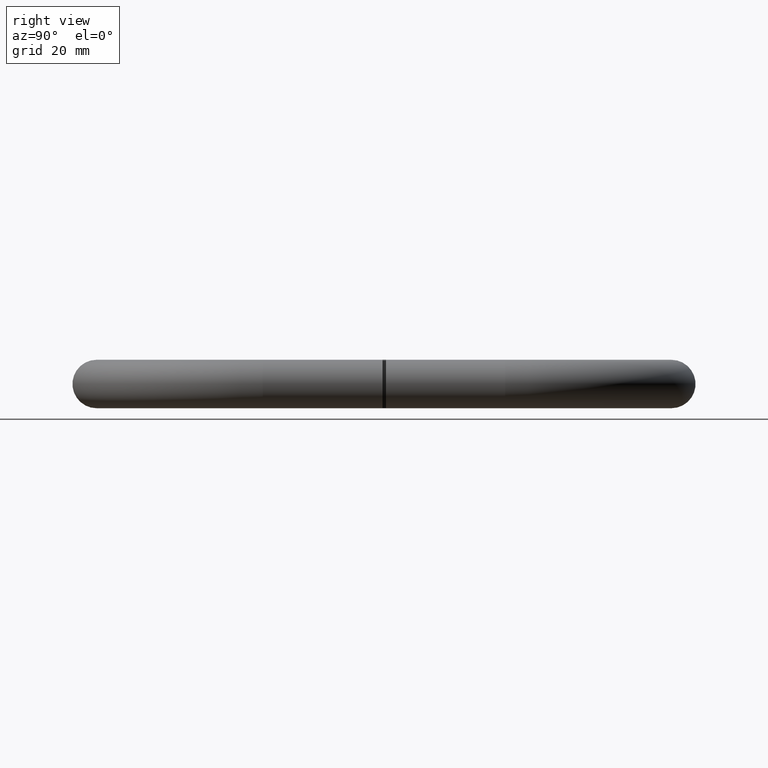
[diagram: clean part render]
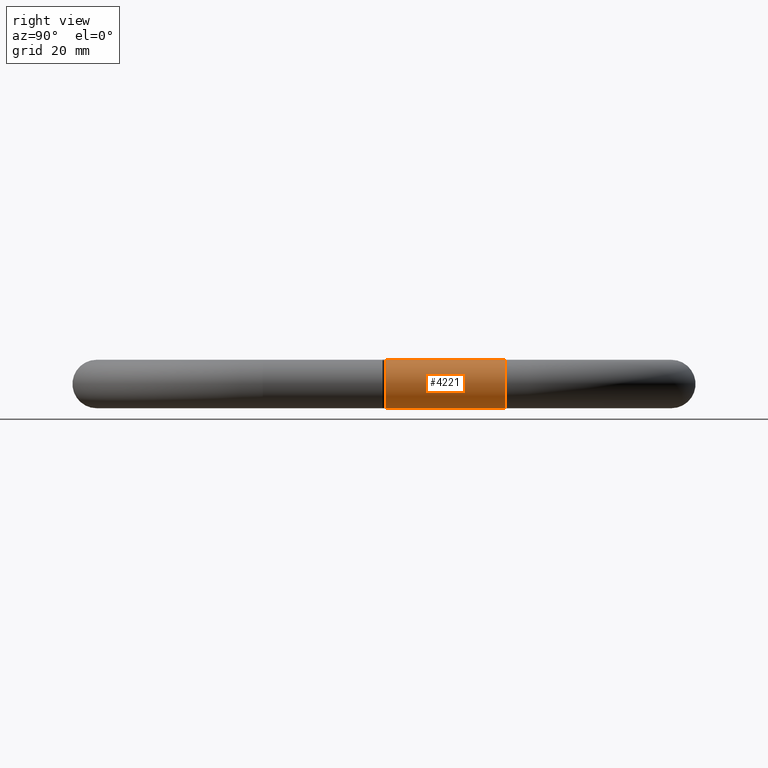
[diagram: same view with one face highlighted and labeled with its STEP entity id]
A machine part, right view. The second image highlights one B-rep face of the part: STEP entity #4221.
In plain terms, the highlighted cylindrical surface (bore or boss wall) has radius 7 mm, axis along (-0, -1, 0).
Its self-contained STEP definition (entity closure, byte-faithful):
#358 = CYLINDRICAL_SURFACE ( 'NONE', #525, 6.999999999999999100 ) ;
#501 = DIRECTION ( 'NONE',  ( -1.836970198721029700E-016, 1.000000000000000000, 0.0000000000000000000 ) ) ;
#525 = AXIS2_PLACEMENT_3D ( 'NONE', #8000, #10665, #1689 ) ;
#625 = FACE_OUTER_BOUND ( 'NONE', #1578, .T. ) ;
#1578 = EDGE_LOOP ( 'NONE', ( #3862 ) ) ;
#1689 = DIRECTION ( 'NONE',  ( 1.000000000000000000, 0.0000000000000000000, 0.0000000000000000000 ) ) ;
#2568 = CARTESIAN_POINT ( 'NONE',  ( 48.00000000000001400, 125.0000000000000000, -7.000000000000000000 ) ) ;
#3862 = ORIENTED_EDGE ( 'NONE', *, *, #10076, .T. ) ;
#4005 = EDGE_LOOP ( 'NONE', ( #8929 ) ) ;
#4221 = ADVANCED_FACE ( 'NONE', ( #625, #9091 ), #358, .T. ) ;
#4368 = AXIS2_PLACEMENT_3D ( 'NONE', #4838, #4736, #9709 ) ;
#4570 = CARTESIAN_POINT ( 'NONE',  ( 48.00000000000001400, 125.0000000000000000, 0.0000000000000000000 ) ) ;
#4688 = VERTEX_POINT ( 'NONE', #2568 ) ;
#4736 = DIRECTION ( 'NONE',  ( 0.0000000000000000000, 1.000000000000000000, 0.0000000000000000000 ) ) ;
#4838 = CARTESIAN_POINT ( 'NONE',  ( 48.00000000000001400, 90.50000000000000000, 0.0000000000000000000 ) ) ;
#5035 = CARTESIAN_POINT ( 'NONE',  ( 48.00000000000001400, 90.50000000000000000, 7.000000000000000000 ) ) ;
#5464 = VERTEX_POINT ( 'NONE', #5035 ) ;
#6224 = DIRECTION ( 'NONE',  ( 0.0000000000000000000, 0.0000000000000000000, -1.000000000000000000 ) ) ;
#6757 = CIRCLE ( 'NONE', #4368, 7.000000000000000000 ) ;
#7142 = AXIS2_PLACEMENT_3D ( 'NONE', #4570, #501, #6224 ) ;
#8000 = CARTESIAN_POINT ( 'NONE',  ( 48.00000000000001400, 125.0000000000000000, 0.0000000000000000000 ) ) ;
#8929 = ORIENTED_EDGE ( 'NONE', *, *, #10231, .F. ) ;
#8951 = CIRCLE ( 'NONE', #7142, 7.000000000000000000 ) ;
#9091 = FACE_OUTER_BOUND ( 'NONE', #4005, .T. ) ;
#9709 = DIRECTION ( 'NONE',  ( 0.0000000000000000000, 0.0000000000000000000, 1.000000000000000000 ) ) ;
#10076 = EDGE_CURVE ( 'NONE', #5464, #5464, #6757, .T. ) ;
#10231 = EDGE_CURVE ( 'NONE', #4688, #4688, #8951, .T. ) ;
#10665 = DIRECTION ( 'NONE',  ( -9.912705577010325500E-017, -1.000000000000000000, 0.0000000000000000000 ) ) ;